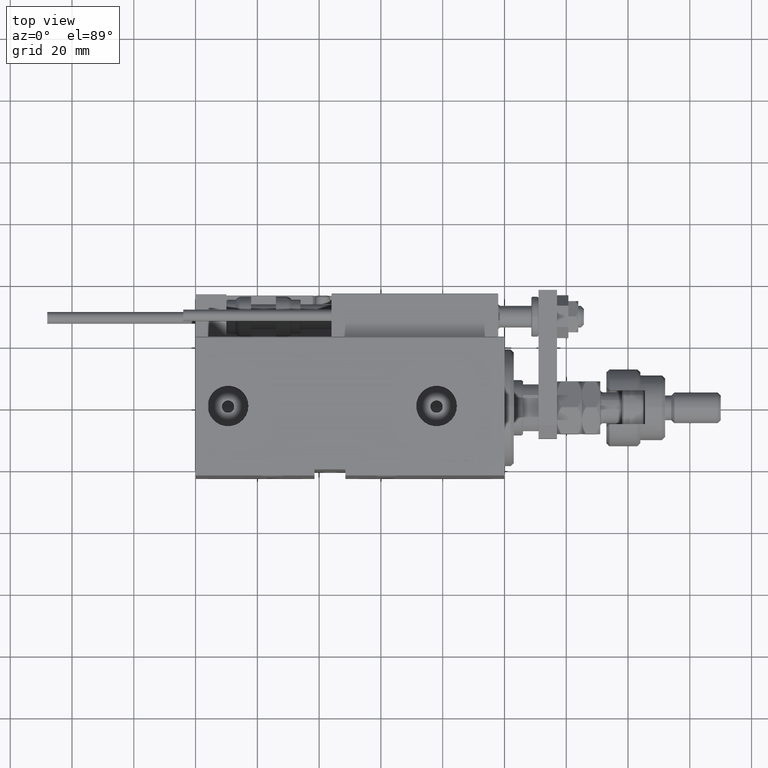
[diagram: clean part render]
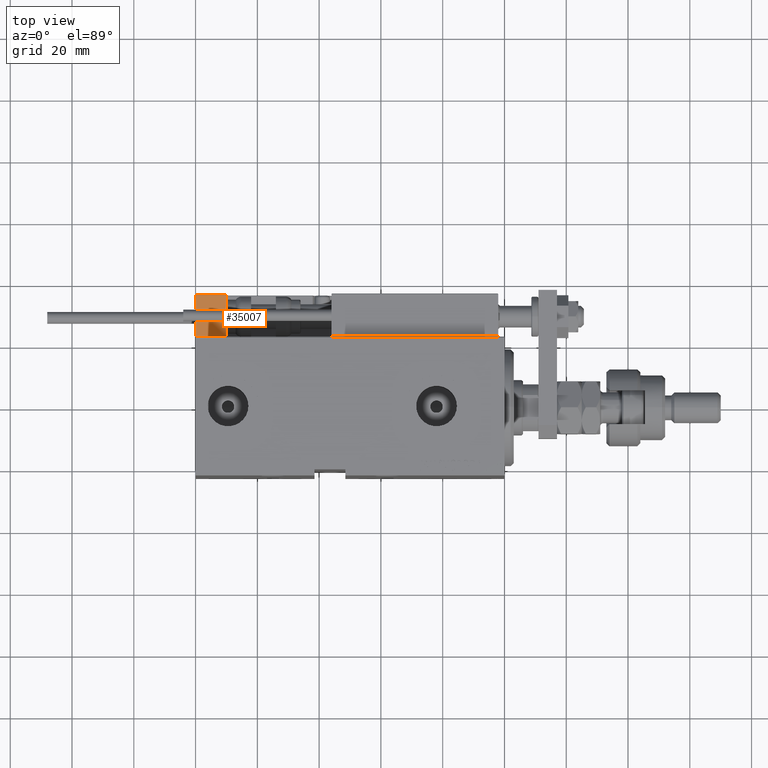
[diagram: same view with one face highlighted and labeled with its STEP entity id]
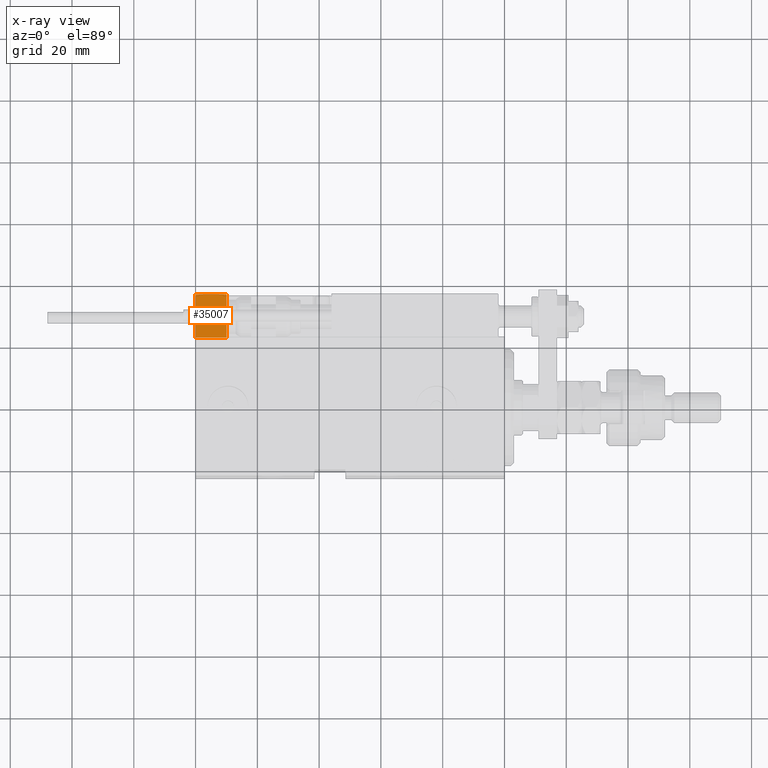
[diagram: x-ray of the same camera — body ghosted, the highlighted face saturated]
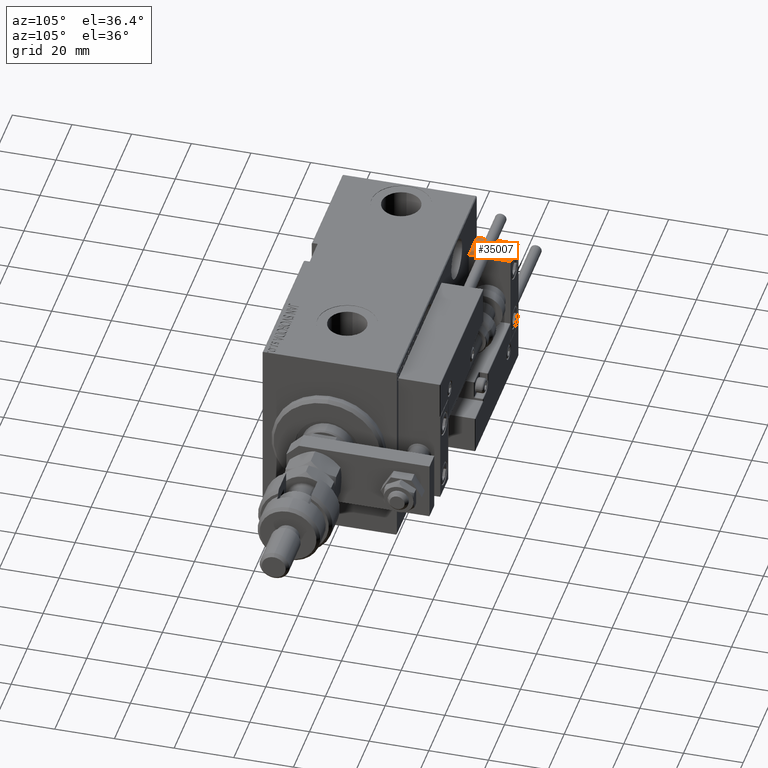
[diagram: same view with one face highlighted and labeled with its STEP entity id]
A machine part, top view. The second image highlights one B-rep face of the part: STEP entity #35007.
The next image is the same camera in x-ray: the body ghosted, the highlighted face saturated — about 0% of this face is hidden behind the body in this view.
A second angle (auxiliary view) of the same face is appended — the face is thin or edge-on in the first view.
In plain terms, the highlighted planar face has unit normal (0, 0, 1).
Its self-contained STEP definition (entity closure, byte-faithful):
#232 = ORIENTED_EDGE ( 'NONE', *, *, #49025, .T. ) ;
#367 = EDGE_CURVE ( 'NONE', #38806, #16783, #8542, .T. ) ;
#990 = LINE ( 'NONE', #46547, #33086 ) ;
#1811 = CARTESIAN_POINT ( 'NONE',  ( 10.00000000000000000, 7.000000000000000000, -16.00000000000000711 ) ) ;
#3964 = LINE ( 'NONE', #44879, #22647 ) ;
#4832 = PLANE ( 'NONE',  #33039 ) ;
#8542 = LINE ( 'NONE', #21413, #51828 ) ;
#12373 = EDGE_LOOP ( 'NONE', ( #43654, #17459, #232, #54108 ) ) ;
#13899 = LINE ( 'NONE', #47429, #41012 ) ;
#14099 = DIRECTION ( 'NONE',  ( 0.000000000000000000, -1.000000000000000000, 0.000000000000000000 ) ) ;
#16276 = DIRECTION ( 'NONE',  ( -1.000000000000000000, -0.000000000000000000, -0.000000000000000000 ) ) ;
#16783 = VERTEX_POINT ( 'NONE', #25140 ) ;
#17459 = ORIENTED_EDGE ( 'NONE', *, *, #50423, .F. ) ;
#17702 = FACE_OUTER_BOUND ( 'NONE', #12373, .T. ) ;
#21413 = CARTESIAN_POINT ( 'NONE',  ( 10.00000000000000000, -7.000000000000000000, -16.00000000000000711 ) ) ;
#22647 = VECTOR ( 'NONE', #16276, 1000.000000000000000 ) ;
#22775 = CARTESIAN_POINT ( 'NONE',  ( 10.00000000000000000, -7.000000000000000000, -16.00000000000000711 ) ) ;
#25140 = CARTESIAN_POINT ( 'NONE',  ( 0.000000000000000000, -7.000000000000000000, -16.00000000000000711 ) ) ;
#25417 = CARTESIAN_POINT ( 'NONE',  ( 0.000000000000000000, 7.000000000000000000, -16.00000000000000711 ) ) ;
#29812 = DIRECTION ( 'NONE',  ( -1.000000000000000000, 0.000000000000000000, -0.000000000000000000 ) ) ;
#33039 = AXIS2_PLACEMENT_3D ( 'NONE', #1811, #42718, #29812 ) ;
#33086 = VECTOR ( 'NONE', #14099, 1000.000000000000000 ) ;
#33783 = DIRECTION ( 'NONE',  ( -1.000000000000000000, -0.000000000000000000, -0.000000000000000000 ) ) ;
#35007 = ADVANCED_FACE ( 'NONE', ( #17702 ), #4832, .T. ) ;
#38806 = VERTEX_POINT ( 'NONE', #22775 ) ;
#39284 = VERTEX_POINT ( 'NONE', #25417 ) ;
#41012 = VECTOR ( 'NONE', #42235, 1000.000000000000000 ) ;
#42235 = DIRECTION ( 'NONE',  ( 0.000000000000000000, -1.000000000000000000, 0.000000000000000000 ) ) ;
#42718 = DIRECTION ( 'NONE',  ( 0.000000000000000000, 0.000000000000000000, -1.000000000000000000 ) ) ;
#43654 = ORIENTED_EDGE ( 'NONE', *, *, #47884, .F. ) ;
#44879 = CARTESIAN_POINT ( 'NONE',  ( 10.00000000000000000, 7.000000000000000000, -16.00000000000000711 ) ) ;
#46096 = VERTEX_POINT ( 'NONE', #49056 ) ;
#46547 = CARTESIAN_POINT ( 'NONE',  ( 0.000000000000000000, 7.000000000000000000, -16.00000000000000711 ) ) ;
#47429 = CARTESIAN_POINT ( 'NONE',  ( 10.00000000000000000, 7.000000000000000000, -16.00000000000000711 ) ) ;
#47884 = EDGE_CURVE ( 'NONE', #39284, #16783, #990, .T. ) ;
#49025 = EDGE_CURVE ( 'NONE', #46096, #38806, #13899, .T. ) ;
#49056 = CARTESIAN_POINT ( 'NONE',  ( 10.00000000000000000, 7.000000000000000000, -16.00000000000000711 ) ) ;
#50423 = EDGE_CURVE ( 'NONE', #46096, #39284, #3964, .T. ) ;
#51828 = VECTOR ( 'NONE', #33783, 1000.000000000000000 ) ;
#54108 = ORIENTED_EDGE ( 'NONE', *, *, #367, .T. ) ;